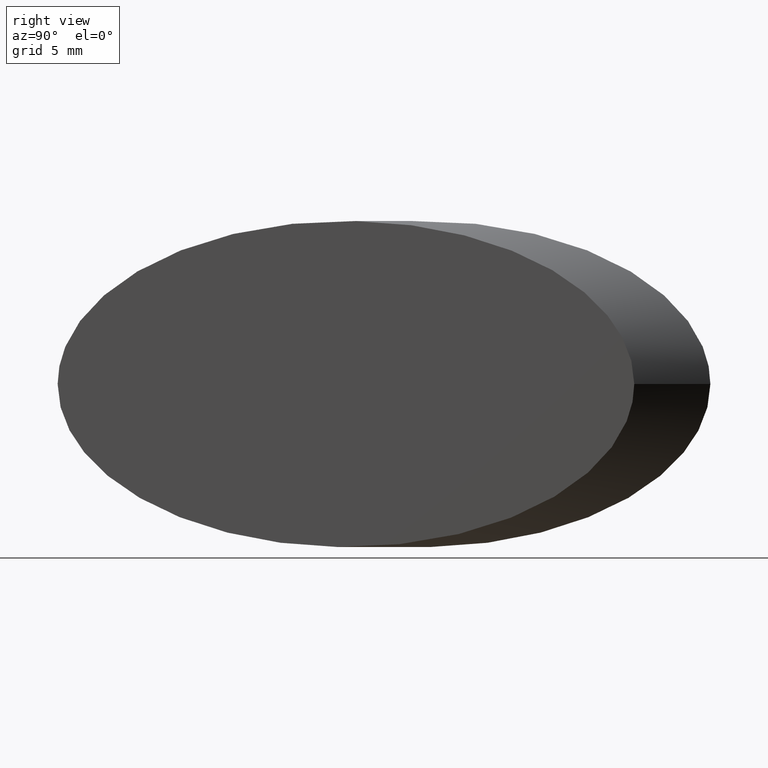
[diagram: clean part render]
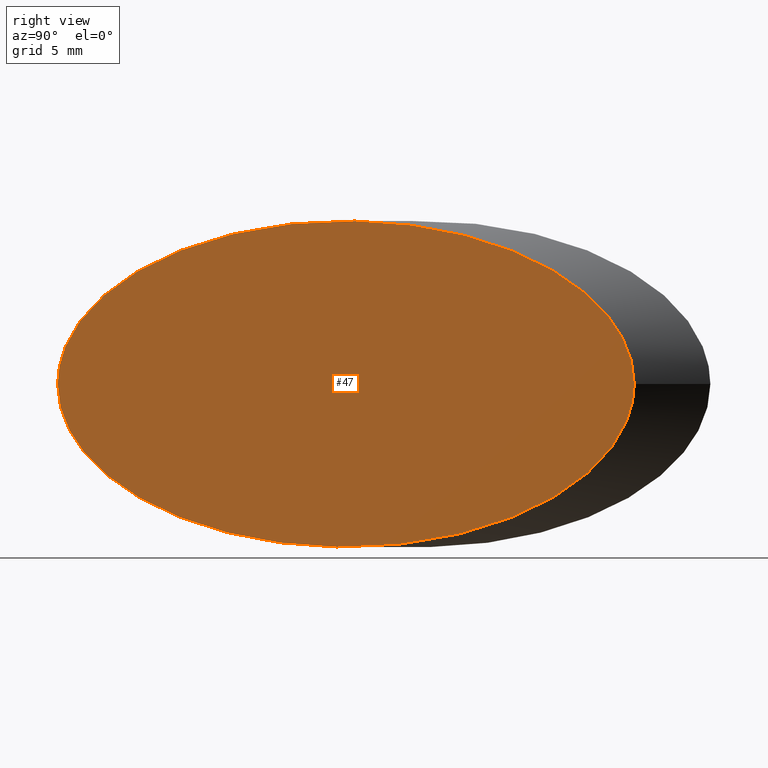
[diagram: same view with one face highlighted and labeled with its STEP entity id]
A machine part, right view. The second image highlights one B-rep face of the part: STEP entity #47.
In plain terms, the highlighted planar face has unit normal (1, 0, 0).
Its self-contained STEP definition (entity closure, byte-faithful):
#15 = EDGE_LOOP ( 'NONE', ( #119, #165 ) ) ;
#17 = VERTEX_POINT ( 'NONE', #72 ) ;
#18 = CARTESIAN_POINT ( 'NONE',  ( 1.000000000000007800, -12.51184537694693300, 0.0000000000000000000 ) ) ;
#28 = CARTESIAN_POINT ( 'NONE',  ( 0.9999999999999967800, 9.594561307427650100, -6.250000000000000000 ) ) ;
#30 = CARTESIAN_POINT ( 'NONE',  ( 1.000000000000004400, 9.594561307427639500, 7.654042494670957600E-016 ) ) ;
#36 = DIRECTION ( 'NONE',  ( 1.000000000000000000, 1.863698752252225800E-016, 0.0000000000000000000 ) ) ;
#37 = CARTESIAN_POINT ( 'NONE',  ( 1.000000000000002400, 9.594561307427635900, 12.50000000000000000 ) ) ;
#47 = ADVANCED_FACE ( 'NONE', ( #78 ), #171, .T. ) ;
#61 = VERTEX_POINT ( 'NONE', #18 ) ;
#68 = CARTESIAN_POINT ( 'NONE',  ( 1.000000000000006200, -12.51184537694692800, -12.50000000000000000 ) ) ;
#71 =( BOUNDED_CURVE ( )  B_SPLINE_CURVE ( 3, ( #155, #68, #145, #96 ),
 .UNSPECIFIED., .F., .F. ) 
 B_SPLINE_CURVE_WITH_KNOTS ( ( 4, 4 ),
 ( 3.141592653589793100, 6.283185307179586200 ),
 .UNSPECIFIED. ) 
 CURVE ( )  GEOMETRIC_REPRESENTATION_ITEM ( )  RATIONAL_B_SPLINE_CURVE ( ( 1.000000000000000000, 0.3333333333333333700, 0.3333333333333333700, 1.000000000000000000 ) ) 
 REPRESENTATION_ITEM ( '' )  );
#72 = CARTESIAN_POINT ( 'NONE',  ( 1.000000000000004400, 9.594561307427639500, 7.654042494670957600E-016 ) ) ;
#78 = FACE_OUTER_BOUND ( 'NONE', #15, .T. ) ;
#81 = EDGE_CURVE ( 'NONE', #17, #61, #107, .T. ) ;
#96 = CARTESIAN_POINT ( 'NONE',  ( 1.000000000000004400, 9.594561307427639500, 7.654042494670957600E-016 ) ) ;
#107 =( BOUNDED_CURVE ( )  B_SPLINE_CURVE ( 3, ( #30, #37, #158, #157 ),
 .UNSPECIFIED., .F., .T. ) 
 B_SPLINE_CURVE_WITH_KNOTS ( ( 4, 4 ),
 ( 1.224646799147353000E-016, 3.141592653589793100 ),
 .UNSPECIFIED. ) 
 CURVE ( )  GEOMETRIC_REPRESENTATION_ITEM ( )  RATIONAL_B_SPLINE_CURVE ( ( 1.000000000000000000, 0.3333333333333333700, 0.3333333333333333700, 1.000000000000000000 ) ) 
 REPRESENTATION_ITEM ( '' )  );
#119 = ORIENTED_EDGE ( 'NONE', *, *, #126, .T. ) ;
#126 = EDGE_CURVE ( 'NONE', #61, #17, #71, .T. ) ;
#128 = DIRECTION ( 'NONE',  ( -1.863698752252225800E-016, 1.000000000000000000, 0.0000000000000000000 ) ) ;
#132 = AXIS2_PLACEMENT_3D ( 'NONE', #28, #36, #128 ) ;
#145 = CARTESIAN_POINT ( 'NONE',  ( 1.000000000000002400, 9.594561307427637700, -12.50000000000000000 ) ) ;
#155 = CARTESIAN_POINT ( 'NONE',  ( 1.000000000000007800, -12.51184537694693300, 0.0000000000000000000 ) ) ;
#157 = CARTESIAN_POINT ( 'NONE',  ( 1.000000000000007800, -12.51184537694693300, 0.0000000000000000000 ) ) ;
#158 = CARTESIAN_POINT ( 'NONE',  ( 1.000000000000006200, -12.51184537694692300, 12.50000000000000000 ) ) ;
#165 = ORIENTED_EDGE ( 'NONE', *, *, #81, .T. ) ;
#171 = PLANE ( 'NONE',  #132 ) ;